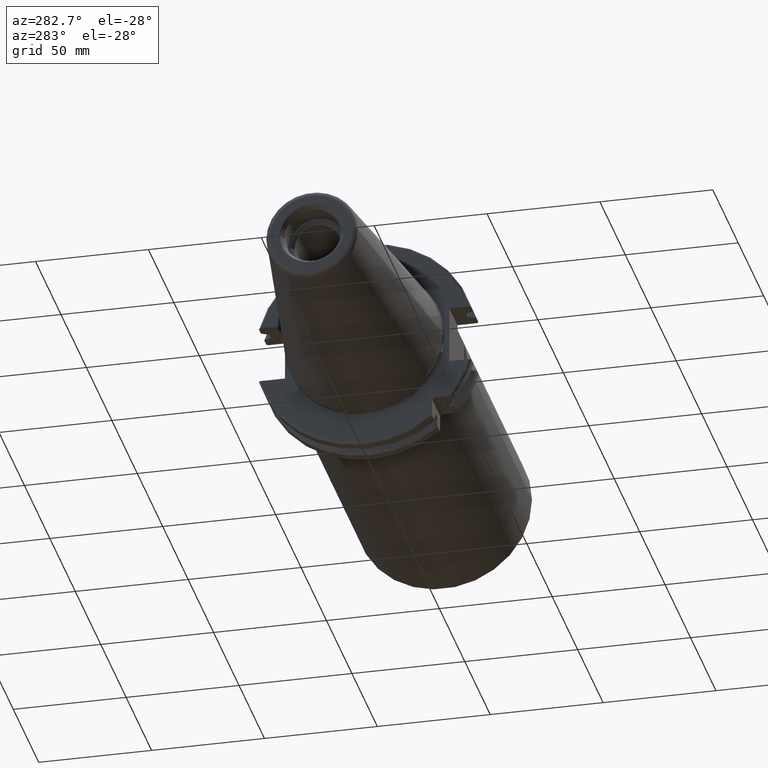
[diagram: clean part render]
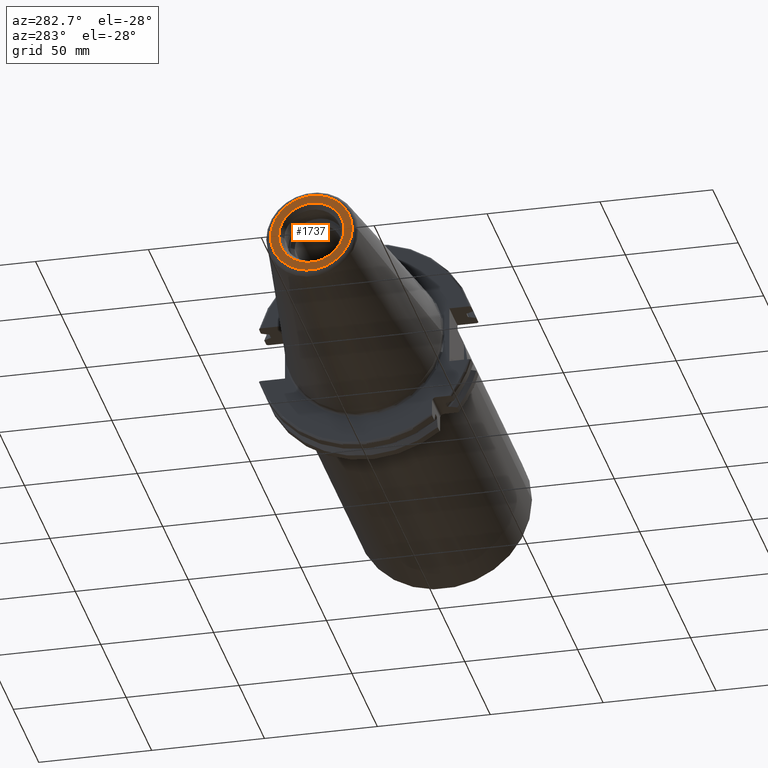
[diagram: same view with one face highlighted and labeled with its STEP entity id]
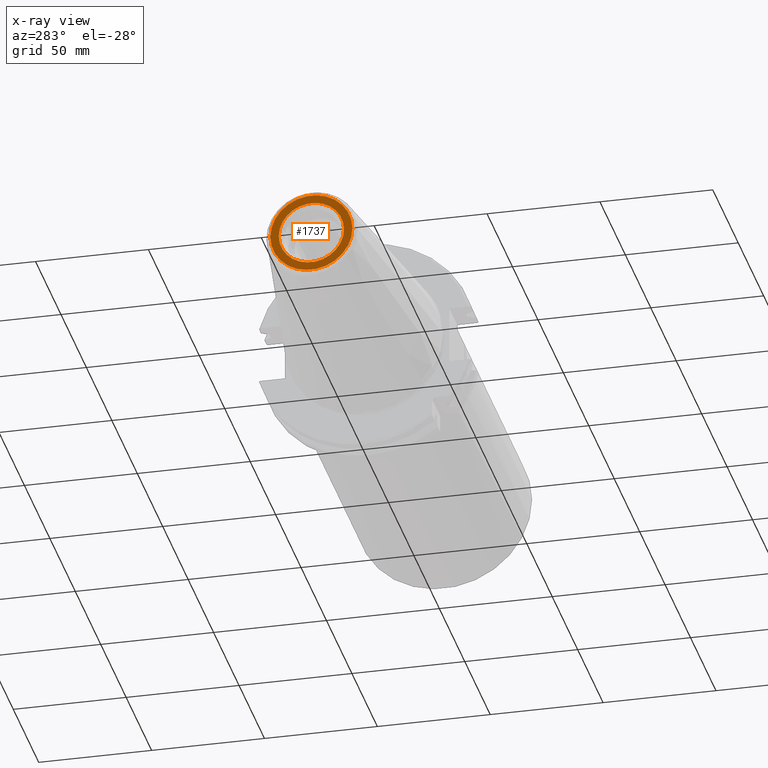
[diagram: x-ray of the same camera — body ghosted, the highlighted face saturated]
A machine part, auxiliary view. The second image highlights one B-rep face of the part: STEP entity #1737.
The next image is the same camera in x-ray: the body ghosted, the highlighted face saturated — about 0% of this face is hidden behind the body in this view.
In plain terms, the highlighted planar face has unit normal (1, 0, 0).
Its self-contained STEP definition (entity closure, byte-faithful):
#2=CARTESIAN_POINT('',(-1.016E2,0.E0,0.E0));
#3=DIRECTION('',(-1.E0,0.E0,0.E0));
#4=DIRECTION('',(0.E0,1.E0,0.E0));
#5=AXIS2_PLACEMENT_3D('',#2,#3,#4);
#7=CARTESIAN_POINT('',(-1.016E2,0.E0,0.E0));
#8=DIRECTION('',(1.E0,0.E0,0.E0));
#9=DIRECTION('',(0.E0,1.E0,0.E0));
#10=AXIS2_PLACEMENT_3D('',#7,#8,#9);
#12=CARTESIAN_POINT('',(-1.016E2,0.E0,0.E0));
#13=DIRECTION('',(1.E0,0.E0,0.E0));
#14=DIRECTION('',(0.E0,1.E0,0.E0));
#15=AXIS2_PLACEMENT_3D('',#12,#13,#14);
#17=CARTESIAN_POINT('',(-1.016E2,0.E0,0.E0));
#18=DIRECTION('',(1.E0,0.E0,0.E0));
#19=DIRECTION('',(0.E0,-1.E0,0.E0));
#20=AXIS2_PLACEMENT_3D('',#17,#18,#19);
#1413=CARTESIAN_POINT('',(-1.016E2,1.816144700117E1,0.E0));
#1415=VERTEX_POINT('',#1413);
#1417=CARTESIAN_POINT('',(-1.016E2,-1.816144700117E1,0.E0));
#1419=VERTEX_POINT('',#1417);
#1476=CARTESIAN_POINT('',(-1.016E2,1.446188021535E1,0.E0));
#1477=CARTESIAN_POINT('',(-1.016E2,-1.446188021535E1,0.E0));
#1478=VERTEX_POINT('',#1476);
#1479=VERTEX_POINT('',#1477);
#1720=CARTESIAN_POINT('',(-1.016E2,0.E0,0.E0));
#1721=DIRECTION('',(1.E0,0.E0,0.E0));
#1722=DIRECTION('',(0.E0,-1.E0,0.E0));
#1723=AXIS2_PLACEMENT_3D('',#1720,#1721,#1722);
#1724=PLANE('',#1723);
#1726=ORIENTED_EDGE('',*,*,#1725,.F.);
#1728=ORIENTED_EDGE('',*,*,#1727,.T.);
#1729=EDGE_LOOP('',(#1726,#1728));
#1730=FACE_OUTER_BOUND('',#1729,.F.);
#1732=ORIENTED_EDGE('',*,*,#1731,.F.);
#1734=ORIENTED_EDGE('',*,*,#1733,.F.);
#1735=EDGE_LOOP('',(#1732,#1734));
#1736=FACE_BOUND('',#1735,.F.);
#1737=ADVANCED_FACE('',(#1730,#1736),#1724,.F.);
#6=CIRCLE('',#5,1.816144700117E1);
#11=CIRCLE('',#10,1.816144700117E1);
#16=CIRCLE('',#15,1.446188021535E1);
#21=CIRCLE('',#20,1.446188021535E1);
#1725=EDGE_CURVE('',#1415,#1419,#6,.T.);
#1727=EDGE_CURVE('',#1415,#1419,#11,.T.);
#1731=EDGE_CURVE('',#1478,#1479,#16,.T.);
#1733=EDGE_CURVE('',#1479,#1478,#21,.T.);